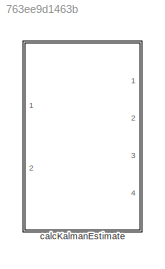
MODEL slx_763ee9d1463b
KIND library
CONFIG AbsTol = auto
CONFIG EnableMultiTasking = off
CONFIG FixedStep = auto
CONFIG MaxStep = auto
CONFIG MinStep = auto
CONFIG RelTol = 1e-3
CONFIG SampleTimeConstraint = Unconstrained
CONFIG SolverName = VariableStepAuto
CONFIG StartTime = 0.0
CONFIG StopTime = 10.0
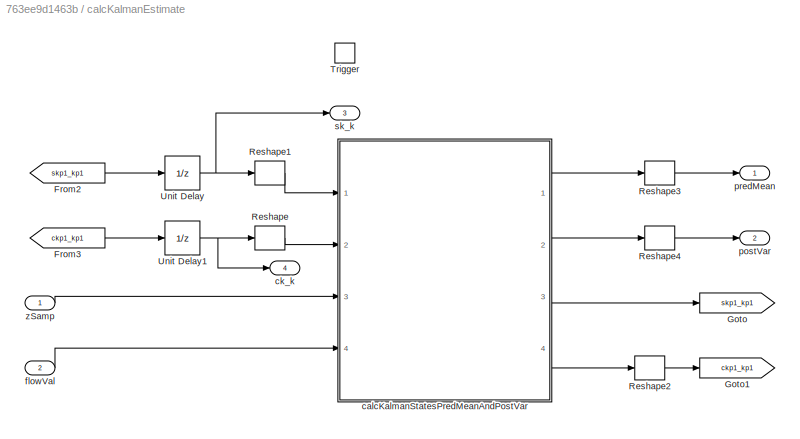
BLOCK [SubSystem] calcKalmanEstimate
  Ports = [2, 4, 0, 1]
  RequestExecContextInheritance = off
BLOCK [From] calcKalmanEstimate/From2
  GotoTag = skp1_kp1
BLOCK [From] calcKalmanEstimate/From3
  GotoTag = ckp1_kp1
BLOCK [Goto] calcKalmanEstimate/Goto
  GotoTag = skp1_kp1
BLOCK [Goto] calcKalmanEstimate/Goto1
  GotoTag = ckp1_kp1
BLOCK [Reshape] calcKalmanEstimate/Reshape
  OutputDimensionality = Column vector (2-D)
  Ports = [1, 1]
BLOCK [Reshape] calcKalmanEstimate/Reshape1
  OutputDimensionality = Column vector (2-D)
  Ports = [1, 1]
BLOCK [Reshape] calcKalmanEstimate/Reshape2
  OutputDimensionality = Customize
  OutputDimensions = length(kfgp.initVals.s0)*[1,1]
  Ports = [1, 1]
BLOCK [Reshape] calcKalmanEstimate/Reshape3
  OutputDimensionality = Column vector (2-D)
  Ports = [1, 1]
BLOCK [Reshape] calcKalmanEstimate/Reshape4
  OutputDimensionality = Column vector (2-D)
  Ports = [1, 1]
BLOCK [TriggerPort] calcKalmanEstimate/Trigger
  Ports = []
  StatesWhenEnabling = held
  VariantControl = Variant
BLOCK [UnitDelay] calcKalmanEstimate/Unit Delay
  HasFrameUpgradeWarning = on
  InitialCondition = kfgp.initVals.s0
  SampleTime = -1
BLOCK [UnitDelay] calcKalmanEstimate/Unit Delay1
  HasFrameUpgradeWarning = on
  InitialCondition = kfgp.initVals.sig0Mat
  SampleTime = -1
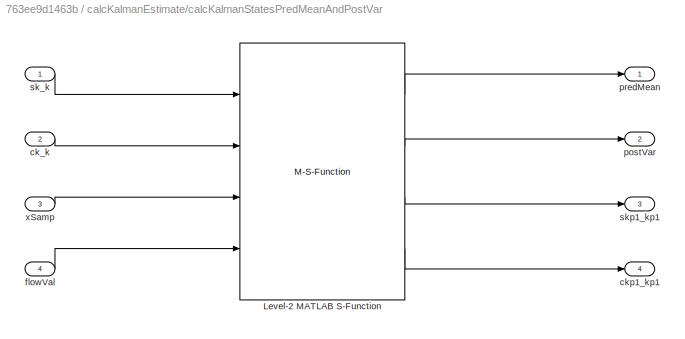
BLOCK [SubSystem] calcKalmanEstimate/calcKalmanStatesPredMeanAndPostVar
  Ports = [4, 4]
  RequestExecContextInheritance = off
BLOCK [M-S-Function] calcKalmanEstimate/calcKalmanStatesPredMeanAndPostVar/Level-2 MATLAB S-Function
  FunctionName = calcKalmanEstimate_Lvl2sFunc
  Parameters = kfgp
  Ports = [4, 4]
BLOCK [Inport] calcKalmanEstimate/calcKalmanStatesPredMeanAndPostVar/ck_k
  Port = 2
BLOCK [Outport] calcKalmanEstimate/calcKalmanStatesPredMeanAndPostVar/ckp1_kp1
  Port = 4
BLOCK [Inport] calcKalmanEstimate/calcKalmanStatesPredMeanAndPostVar/flowVal
  Port = 4
BLOCK [Outport] calcKalmanEstimate/calcKalmanStatesPredMeanAndPostVar/postVar
  Port = 2
BLOCK [Outport] calcKalmanEstimate/calcKalmanStatesPredMeanAndPostVar/predMean
BLOCK [Inport] calcKalmanEstimate/calcKalmanStatesPredMeanAndPostVar/sk_k
BLOCK [Outport] calcKalmanEstimate/calcKalmanStatesPredMeanAndPostVar/skp1_kp1
  Port = 3
BLOCK [Inport] calcKalmanEstimate/calcKalmanStatesPredMeanAndPostVar/xSamp
  Port = 3
BLOCK [Outport] calcKalmanEstimate/ck_k
  Port = 4
BLOCK [Inport] calcKalmanEstimate/flowVal
  Port = 2
BLOCK [Outport] calcKalmanEstimate/postVar
  Port = 2
BLOCK [Outport] calcKalmanEstimate/predMean
BLOCK [Outport] calcKalmanEstimate/sk_k
  Port = 3
BLOCK [Inport] calcKalmanEstimate/zSamp
LINE calcKalmanEstimate/From2:1 -> calcKalmanEstimate/Unit Delay:1
LINE calcKalmanEstimate/From3:1 -> calcKalmanEstimate/Unit Delay1:1
LINE calcKalmanEstimate/Reshape1:1 -> calcKalmanEstimate/calcKalmanStatesPredMeanAndPostVar:1
LINE calcKalmanEstimate/Reshape2:1 -> calcKalmanEstimate/Goto1:1
LINE calcKalmanEstimate/Reshape3:1 -> calcKalmanEstimate/predMean:1
LINE calcKalmanEstimate/Reshape4:1 -> calcKalmanEstimate/postVar:1
LINE calcKalmanEstimate/Reshape:1 -> calcKalmanEstimate/calcKalmanStatesPredMeanAndPostVar:2
NET calcKalmanEstimate/Unit Delay1:1 -> calcKalmanEstimate/Reshape:1, calcKalmanEstimate/ck_k:1
NET calcKalmanEstimate/Unit Delay:1 -> calcKalmanEstimate/Reshape1:1, calcKalmanEstimate/sk_k:1
LINE calcKalmanEstimate/calcKalmanStatesPredMeanAndPostVar/Level-2 MATLAB S-Function:1 -> calcKalmanEstimate/calcKalmanStatesPredMeanAndPostVar/predMean:1
LINE calcKalmanEstimate/calcKalmanStatesPredMeanAndPostVar/Level-2 MATLAB S-Function:2 -> calcKalmanEstimate/calcKalmanStatesPredMeanAndPostVar/postVar:1
LINE calcKalmanEstimate/calcKalmanStatesPredMeanAndPostVar/Level-2 MATLAB S-Function:3 -> calcKalmanEstimate/calcKalmanStatesPredMeanAndPostVar/skp1_kp1:1
LINE calcKalmanEstimate/calcKalmanStatesPredMeanAndPostVar/Level-2 MATLAB S-Function:4 -> calcKalmanEstimate/calcKalmanStatesPredMeanAndPostVar/ckp1_kp1:1
LINE calcKalmanEstimate/calcKalmanStatesPredMeanAndPostVar/ck_k:1 -> calcKalmanEstimate/calcKalmanStatesPredMeanAndPostVar/Level-2 MATLAB S-Function:2
LINE calcKalmanEstimate/calcKalmanStatesPredMeanAndPostVar/flowVal:1 -> calcKalmanEstimate/calcKalmanStatesPredMeanAndPostVar/Level-2 MATLAB S-Function:4
LINE calcKalmanEstimate/calcKalmanStatesPredMeanAndPostVar/sk_k:1 -> calcKalmanEstimate/calcKalmanStatesPredMeanAndPostVar/Level-2 MATLAB S-Function:1
LINE calcKalmanEstimate/calcKalmanStatesPredMeanAndPostVar/xSamp:1 -> calcKalmanEstimate/calcKalmanStatesPredMeanAndPostVar/Level-2 MATLAB S-Function:3
LINE calcKalmanEstimate/calcKalmanStatesPredMeanAndPostVar:1 -> calcKalmanEstimate/Reshape3:1
LINE calcKalmanEstimate/calcKalmanStatesPredMeanAndPostVar:2 -> calcKalmanEstimate/Reshape4:1
LINE calcKalmanEstimate/calcKalmanStatesPredMeanAndPostVar:3 -> calcKalmanEstimate/Goto:1
LINE calcKalmanEstimate/calcKalmanStatesPredMeanAndPostVar:4 -> calcKalmanEstimate/Reshape2:1
LINE calcKalmanEstimate/flowVal:1 -> calcKalmanEstimate/calcKalmanStatesPredMeanAndPostVar:4
LINE calcKalmanEstimate/zSamp:1 -> calcKalmanEstimate/calcKalmanStatesPredMeanAndPostVar:3
note: NET lines group one-source signal fan-out (src -> all destinations, sorted); 1:1 wires keep LINE
